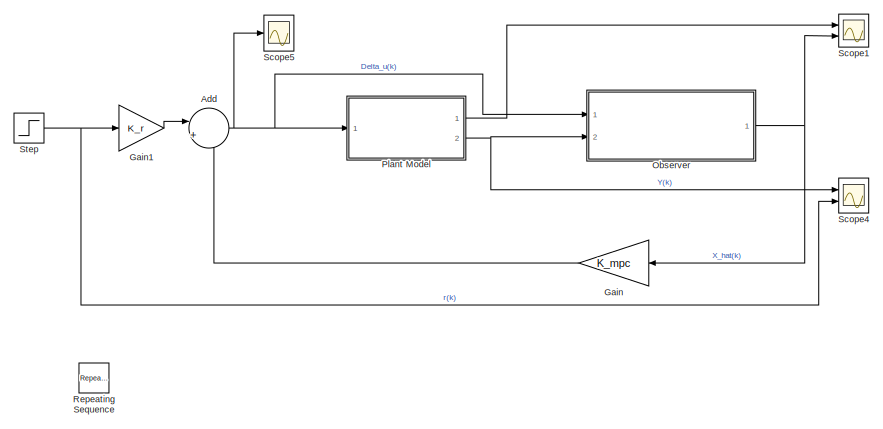
[diagram: root canvas - part 1/2, top right region]
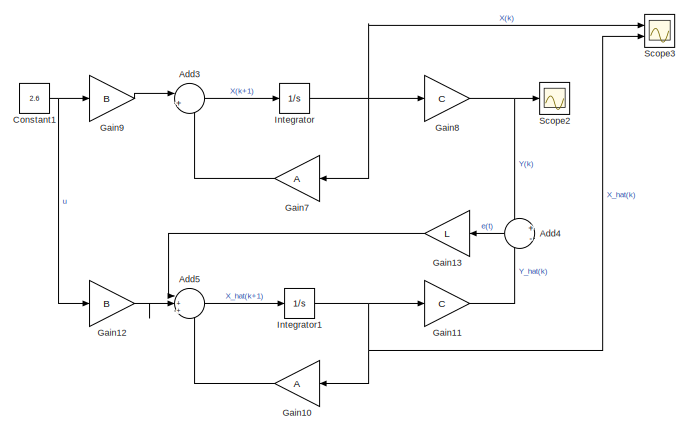
[diagram: root canvas - part 2/2, bottom left region]
MODEL slx_8371157d7521
KIND model
CONFIG AbsTol = auto
CONFIG EnableMultiTasking = off
CONFIG FixedStep = auto
CONFIG MaxStep = auto
CONFIG MinStep = auto
CONFIG RelTol = 1e-3
CONFIG SampleTimeConstraint = Unconstrained
CONFIG SolverName = VariableStepAuto
CONFIG StartTime = 0.0
CONFIG StopTime = 10000
BLOCK [Sum] Add
  Inputs = |+-
  Ports = [2, 1]
BLOCK [Sum] Add3
  Commented = on
  Inputs = |++
  Ports = [2, 1]
BLOCK [Sum] Add4
  Commented = on
  Inputs = +-
  NameLocation = top
  Ports = [2, 1]
BLOCK [Sum] Add5
  Commented = on
  Inputs = |+++
  Ports = [3, 1]
BLOCK [Constant] Constant1
  Commented = on
  Value = 2.6
BLOCK [Gain] Gain
  Gain = K_mpc
  Multiplication = Matrix(K*u)
  NameLocation = top
BLOCK [Gain] Gain1
  Gain = K_r
  Multiplication = Matrix(K*u)
BLOCK [Gain] Gain10
  Commented = on
  Gain = A
  Multiplication = Matrix(K*u)
  NameLocation = top
BLOCK [Gain] Gain11
  Commented = on
  Gain = C
  Multiplication = Matrix(K*u)
BLOCK [Gain] Gain12
  Commented = on
  Gain = B
  Multiplication = Matrix(K*u)
BLOCK [Gain] Gain13
  Commented = on
  Gain = L
  Multiplication = Matrix(K*u)
  NameLocation = top
BLOCK [Gain] Gain7
  Commented = on
  Gain = A
  Multiplication = Matrix(K*u)
  NameLocation = top
BLOCK [Gain] Gain8
  Commented = on
  Gain = C
  Multiplication = Matrix(K*u)
BLOCK [Gain] Gain9
  Commented = on
  Gain = B
  Multiplication = Matrix(K*u)
BLOCK [Integrator] Integrator
  Commented = on
  InitialCondition = X0
  Ports = [1, 1]
BLOCK [Integrator] Integrator1
  Commented = on
  Ports = [1, 1]
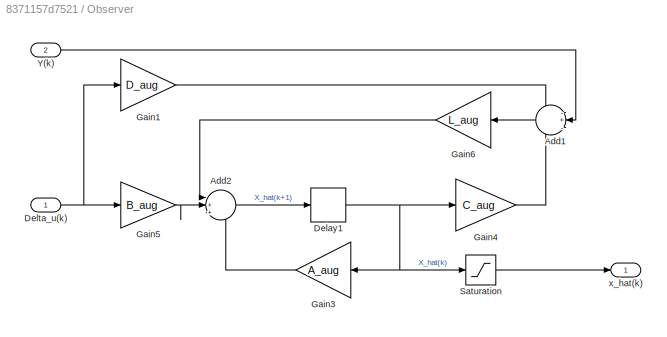
BLOCK [SubSystem] Observer
  Ports = [2, 1]
  RequestExecContextInheritance = off
BLOCK [Sum] Observer/Add1
  Inputs = -+-
  NameLocation = top
  Ports = [3, 1]
BLOCK [Sum] Observer/Add2
  Inputs = |+++
  Ports = [3, 1]
BLOCK [Delay] Observer/Delay1
  DelayLength = 1
  InitialCondition = 0
  InputPortMap = u0
  Ports = [1, 1]
BLOCK [Inport] Observer/Delta_u(k)
BLOCK [Gain] Observer/Gain1
  Gain = D_aug
  Multiplication = Matrix(K*u)
BLOCK [Gain] Observer/Gain3
  Gain = A_aug
  Multiplication = Matrix(K*u)
  NameLocation = top
BLOCK [Gain] Observer/Gain4
  Gain = C_aug
  Multiplication = Matrix(K*u)
BLOCK [Gain] Observer/Gain5
  Gain = B_aug
  Multiplication = Matrix(K*u)
BLOCK [Gain] Observer/Gain6
  Gain = L_aug
  Multiplication = Matrix(K*u)
  NameLocation = top
BLOCK [Saturate] Observer/Saturation
  LowerLimit = 0
  UpperLimit = [1;4.2;4.2;10]
BLOCK [Inport] Observer/Y(k)
  Port = 2
BLOCK [Outport] Observer/x_hat(k)
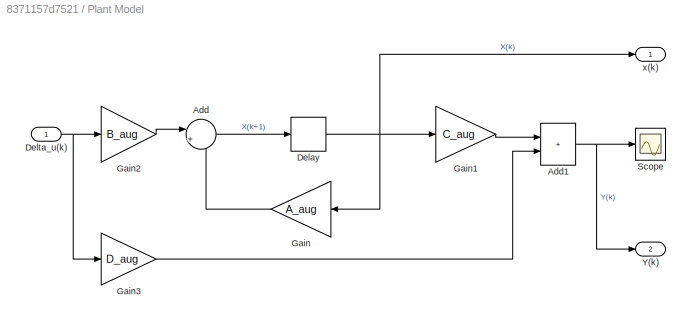
BLOCK [SubSystem] Plant Model
  Ports = [1, 2]
  RequestExecContextInheritance = off
BLOCK [Sum] Plant Model/Add
  Inputs = |++
  Ports = [2, 1]
BLOCK [Sum] Plant Model/Add1
  IconShape = rectangular
  Ports = [2, 1]
BLOCK [Delay] Plant Model/Delay
  DelayLength = 1
  InitialCondition = x0
  InputPortMap = u0
  Ports = [1, 1]
BLOCK [Inport] Plant Model/Delta_u(k)
BLOCK [Gain] Plant Model/Gain
  Gain = A_aug
  Multiplication = Matrix(K*u)
  NameLocation = top
BLOCK [Gain] Plant Model/Gain1
  Gain = C_aug
  Multiplication = Matrix(K*u)
BLOCK [Gain] Plant Model/Gain2
  Gain = B_aug
  Multiplication = Matrix(K*u)
BLOCK [Gain] Plant Model/Gain3
  Gain = D_aug
  Multiplication = Matrix(K*u)
BLOCK [Scope] Plant Model/Scope
  Floating = off
  NumInputPorts = 1
  Ports = [1]
  ScopeSpecificationString = Simulink.scopes.TimeScopeBlockCfg('CurrentConfiguration', extmgr.ConfigurationSet(extmgr.Configuration('Core','General UI',true),extmgr.Configuration('Core','Source UI',true),extmgr.Configuration('Sources','WiredSimulink',true),extmgr.Configuration('Visuals','Time Domain',true,'SerializedDisplays',{struct('MinYLimReal','3.6660788','MaxYLimReal','3.6660801','YLabelReal','','MinYLimMag','3.6660788',...<+1371ch>
BLOCK [Outport] Plant Model/Y(k)
  Port = 2
BLOCK [Outport] Plant Model/x(k)
BLOCK [Reference] Repeating Sequence  REF=simulink/Sources/Repeating
Sequence
  Ports = [0, 1]
  SourceBlock = simulink/Sources/Repeating\nSequence
  SourceProductBaseCode = SL
  SourceType = Repeating table
BLOCK [Scope] Scope1
  Floating = off
  NumInputPorts = 2
  Ports = [2]
  ScopeSpecificationString = Simulink.scopes.TimeScopeBlockCfg('CurrentConfiguration', extmgr.ConfigurationSet(extmgr.Configuration('Core','General UI',true,'FigureColor',[1 1 1]),extmgr.Configuration('Core','Source UI',true),extmgr.Configuration('Sources','WiredSimulink',true,'DataLoggingVariableName','ScopeData1'),extmgr.Configuration('Visuals','Time Domain',true,'SerializedDisplays',{struct('MinYLimReal','-1.00000','MaxYLi...<+2458ch>
BLOCK [Scope] Scope2
  Commented = on
  Floating = off
  NumInputPorts = 1
  Ports = [1]
  ScopeSpecificationString = Simulink.scopes.TimeScopeBlockCfg('CurrentConfiguration', extmgr.ConfigurationSet(extmgr.Configuration('Core','General UI',true),extmgr.Configuration('Core','Source UI',true),extmgr.Configuration('Sources','WiredSimulink',true,'DataLoggingVariableName','ScopeData1'),extmgr.Configuration('Visuals','Time Domain',true,'SerializedDisplays',{struct('MinYLimReal','0.24032','MaxYLimReal','0.44032','YLabe...<+1394ch>
BLOCK [Scope] Scope3
  Commented = on
  Floating = off
  NumInputPorts = 2
  Ports = [2]
  ScopeSpecificationString = Simulink.scopes.TimeScopeBlockCfg('CurrentConfiguration', extmgr.ConfigurationSet(extmgr.Configuration('Core','General UI',true),extmgr.Configuration('Core','Source UI',true),extmgr.Configuration('Sources','WiredSimulink',true,'DataLoggingVariableName','ScopeData2'),extmgr.Configuration('Visuals','Time Domain',true,'SerializedDisplays',{struct('MinYLimReal','-2165.8051','MaxYLimReal','4659.25398',...<+1984ch>
BLOCK [Scope] Scope4
  Floating = off
  NumInputPorts = 2
  Ports = [2]
  ScopeSpecificationString = Simulink.scopes.TimeScopeBlockCfg('CurrentConfiguration', extmgr.ConfigurationSet(extmgr.Configuration('Core','General UI',true,'FigureColor',[1 1 1]),extmgr.Configuration('Core','Source UI',true),extmgr.Configuration('Sources','WiredSimulink',true,'DataLoggingVariableName','ScopeData1'),extmgr.Configuration('Visuals','Time Domain',true,'SerializedDisplays',{struct('MinYLimReal','-0.625','MaxYLimR...<+2326ch>
BLOCK [Scope] Scope5
  Floating = off
  NumInputPorts = 1
  Ports = [1]
  ScopeSpecificationString = Simulink.scopes.TimeScopeBlockCfg('CurrentConfiguration', extmgr.ConfigurationSet(extmgr.Configuration('Core','General UI',true,'FigureColor',[1 1 1]),extmgr.Configuration('Core','Source UI',true),extmgr.Configuration('Sources','WiredSimulink',true,'DataLoggingVariableName','ScopeData2'),extmgr.Configuration('Visuals','Time Domain',true,'SerializedDisplays',{struct('MinYLimReal','-5.5053','MaxYLim...<+2352ch>
BLOCK [Step] Step
  After = 5
  SampleTime = 0
  Time = 10000
LINE Add3:1 -> Integrator:1
LINE Add4:1 -> Gain13:1
LINE Add5:1 -> Integrator1:1
NET Add:1 -> Observer:1, Plant Model:1, Scope5:1
NET Constant1:1 -> Gain12:1, Gain9:1
LINE Gain10:1 -> Add5:3
LINE Gain11:1 -> Add4:2
LINE Gain12:1 -> Add5:2
LINE Gain13:1 -> Add5:1
LINE Gain1:1 -> Add:1
LINE Gain7:1 -> Add3:2
NET Gain8:1 -> Add4:1, Scope2:1
LINE Gain9:1 -> Add3:1
LINE Gain:1 -> Add:2
NET Integrator1:1 -> Gain10:1, Gain11:1, Scope3:2
NET Integrator:1 -> Gain7:1, Gain8:1, Scope3:1
LINE Observer/Add1:1 -> Observer/Gain6:1
LINE Observer/Add2:1 -> Observer/Delay1:1
NET Observer/Delay1:1 -> Observer/Gain3:1, Observer/Gain4:1, Observer/Saturation:1
NET Observer/Delta_u(k):1 -> Observer/Gain1:1, Observer/Gain5:1
LINE Observer/Gain1:1 -> Observer/Add1:1
LINE Observer/Gain3:1 -> Observer/Add2:3
LINE Observer/Gain4:1 -> Observer/Add1:3
LINE Observer/Gain5:1 -> Observer/Add2:2
LINE Observer/Gain6:1 -> Observer/Add2:1
LINE Observer/Saturation:1 -> Observer/x_hat(k):1
LINE Observer/Y(k):1 -> Observer/Add1:2
NET Observer:1 -> Gain:1, Scope1:2
NET Plant Model/Add1:1 -> Plant Model/Scope:1, Plant Model/Y(k):1
LINE Plant Model/Add:1 -> Plant Model/Delay:1
NET Plant Model/Delay:1 -> Plant Model/Gain1:1, Plant Model/Gain:1, Plant Model/x(k):1
NET Plant Model/Delta_u(k):1 -> Plant Model/Gain2:1, Plant Model/Gain3:1
LINE Plant Model/Gain1:1 -> Plant Model/Add1:1
LINE Plant Model/Gain2:1 -> Plant Model/Add:1
LINE Plant Model/Gain3:1 -> Plant Model/Add1:2
LINE Plant Model/Gain:1 -> Plant Model/Add:2
LINE Plant Model:1 -> Scope1:1
NET Plant Model:2 -> Observer:2, Scope4:1
NET Step:1 -> Gain1:1, Scope4:2
note: NET lines group one-source signal fan-out (src -> all destinations, sorted); 1:1 wires keep LINE
